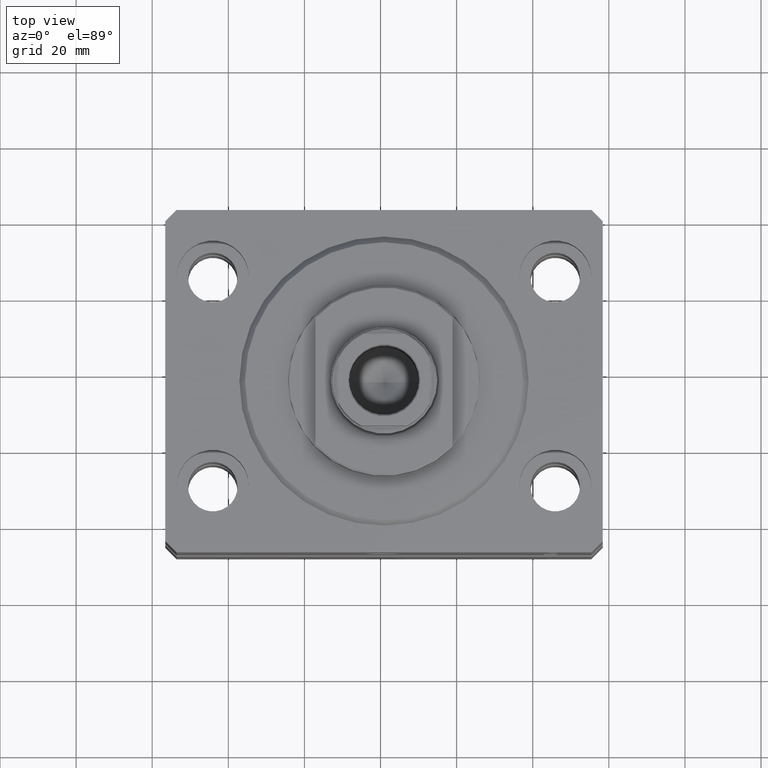
[diagram: clean part render]
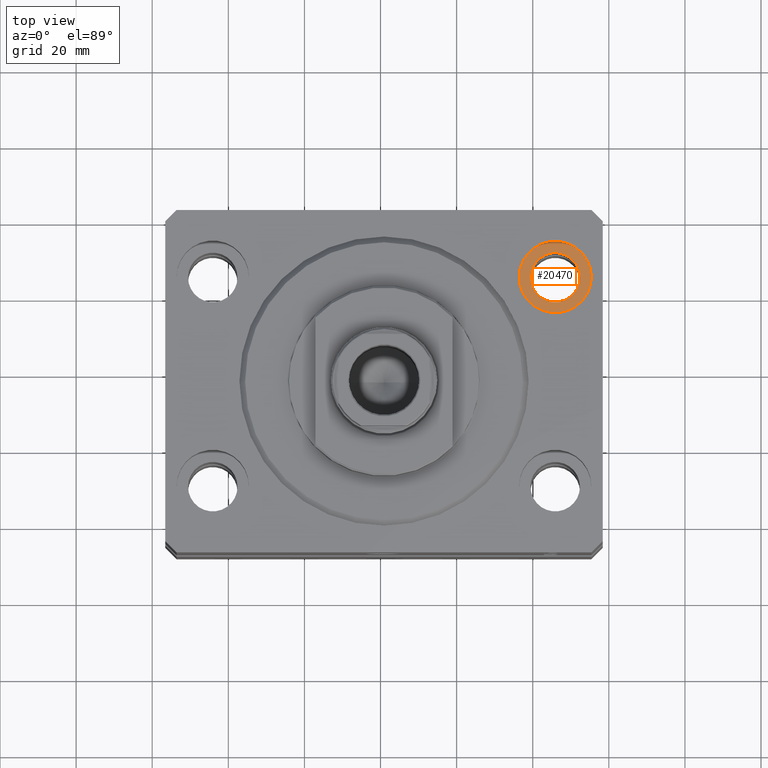
[diagram: same view with one face highlighted and labeled with its STEP entity id]
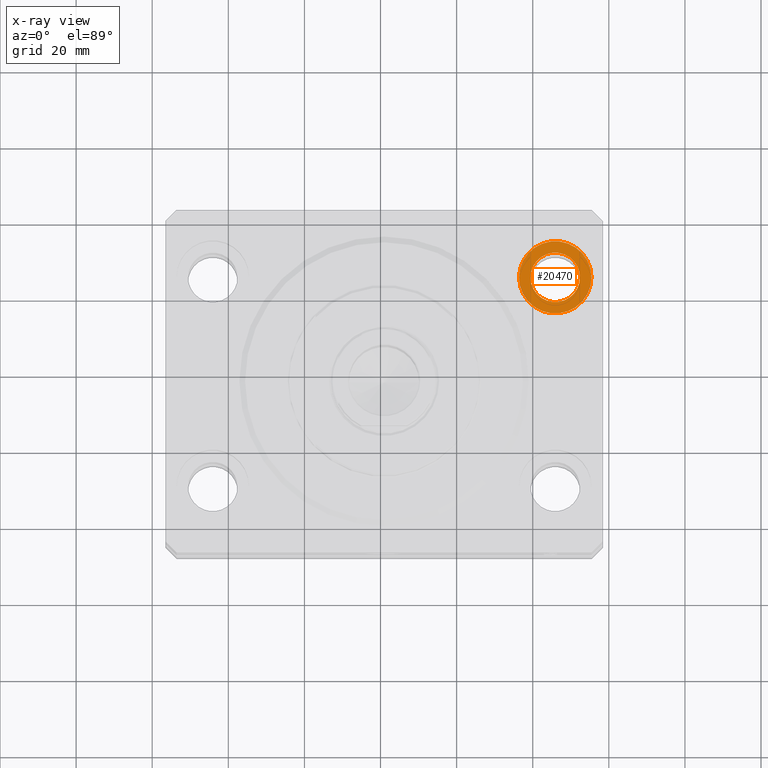
[diagram: x-ray of the same camera — body ghosted, the highlighted face saturated]
A machine part, top view. The second image highlights one B-rep face of the part: STEP entity #20470.
The next image is the same camera in x-ray: the body ghosted, the highlighted face saturated — about 0% of this face is hidden behind the body in this view.
In plain terms, the highlighted planar face has unit normal (0, 0, 1).
Its self-contained STEP definition (entity closure, byte-faithful):
#434 = EDGE_CURVE ( 'NONE', #6486, #27937, #5497, .T. ) ;
#619 = DIRECTION ( 'NONE',  ( 1.000000000000000000, 0.000000000000000000, 0.000000000000000000 ) ) ;
#2572 = DIRECTION ( 'NONE',  ( 1.000000000000000000, 0.000000000000000000, -0.000000000000000000 ) ) ;
#3683 = AXIS2_PLACEMENT_3D ( 'NONE', #44148, #15832, #36475 ) ;
#4068 = CARTESIAN_POINT ( 'NONE',  ( 45.00000000000000000, 27.50000000000001776, -13.00000000000000000 ) ) ;
#5497 = CIRCLE ( 'NONE', #13687, 9.500000000000001776 ) ;
#5590 = FACE_OUTER_BOUND ( 'NONE', #23919, .T. ) ;
#6486 = VERTEX_POINT ( 'NONE', #35922 ) ;
#6534 = EDGE_LOOP ( 'NONE', ( #41069, #38050 ) ) ;
#7588 = DIRECTION ( 'NONE',  ( 0.000000000000000000, 0.000000000000000000, 1.000000000000000000 ) ) ;
#9701 = CIRCLE ( 'NONE', #35639, 6.499999999999999112 ) ;
#10537 = AXIS2_PLACEMENT_3D ( 'NONE', #4068, #18267, #13640 ) ;
#11093 = CARTESIAN_POINT ( 'NONE',  ( 45.00000000000000000, 27.50000000000001776, -13.00000000000000000 ) ) ;
#11311 = ORIENTED_EDGE ( 'NONE', *, *, #434, .T. ) ;
#12627 = CARTESIAN_POINT ( 'NONE',  ( 38.50000000000000000, 27.50000000000001776, -13.00000000000000000 ) ) ;
#13407 = VERTEX_POINT ( 'NONE', #12627 ) ;
#13417 = CARTESIAN_POINT ( 'NONE',  ( 35.50000000000000000, 27.50000000000001776, -13.00000000000000000 ) ) ;
#13640 = DIRECTION ( 'NONE',  ( 1.000000000000000000, 0.000000000000000000, 0.000000000000000000 ) ) ;
#13687 = AXIS2_PLACEMENT_3D ( 'NONE', #39060, #36687, #22106 ) ;
#15832 = DIRECTION ( 'NONE',  ( 0.000000000000000000, 0.000000000000000000, 1.000000000000000000 ) ) ;
#16701 = CARTESIAN_POINT ( 'NONE',  ( 51.50000000000000000, 27.50000000000001776, -13.00000000000000000 ) ) ;
#17836 = AXIS2_PLACEMENT_3D ( 'NONE', #34159, #37403, #2572 ) ;
#18267 = DIRECTION ( 'NONE',  ( 0.000000000000000000, 0.000000000000000000, 1.000000000000000000 ) ) ;
#19421 = EDGE_CURVE ( 'NONE', #27937, #6486, #21511, .T. ) ;
#20470 = ADVANCED_FACE ( 'NONE', ( #34386, #5590 ), #37870, .T. ) ;
#20917 = CIRCLE ( 'NONE', #10537, 6.499999999999999112 ) ;
#21511 = CIRCLE ( 'NONE', #3683, 9.500000000000001776 ) ;
#22014 = EDGE_CURVE ( 'NONE', #13407, #41984, #9701, .T. ) ;
#22106 = DIRECTION ( 'NONE',  ( 1.000000000000000000, 0.000000000000000000, 0.000000000000000000 ) ) ;
#23919 = EDGE_LOOP ( 'NONE', ( #11311, #33468 ) ) ;
#25427 = EDGE_CURVE ( 'NONE', #41984, #13407, #20917, .T. ) ;
#27937 = VERTEX_POINT ( 'NONE', #13417 ) ;
#33468 = ORIENTED_EDGE ( 'NONE', *, *, #19421, .T. ) ;
#34159 = CARTESIAN_POINT ( 'NONE',  ( 45.00000000000000000, 27.50000000000001776, -13.00000000000000000 ) ) ;
#34386 = FACE_BOUND ( 'NONE', #6534, .T. ) ;
#35639 = AXIS2_PLACEMENT_3D ( 'NONE', #11093, #7588, #619 ) ;
#35922 = CARTESIAN_POINT ( 'NONE',  ( 54.50000000000000000, 27.50000000000001776, -13.00000000000000000 ) ) ;
#36475 = DIRECTION ( 'NONE',  ( 1.000000000000000000, 0.000000000000000000, 0.000000000000000000 ) ) ;
#36687 = DIRECTION ( 'NONE',  ( 0.000000000000000000, 0.000000000000000000, 1.000000000000000000 ) ) ;
#37403 = DIRECTION ( 'NONE',  ( 0.000000000000000000, 0.000000000000000000, 1.000000000000000000 ) ) ;
#37870 = PLANE ( 'NONE',  #17836 ) ;
#38050 = ORIENTED_EDGE ( 'NONE', *, *, #22014, .F. ) ;
#39060 = CARTESIAN_POINT ( 'NONE',  ( 45.00000000000000000, 27.50000000000001776, -13.00000000000000000 ) ) ;
#41069 = ORIENTED_EDGE ( 'NONE', *, *, #25427, .F. ) ;
#41984 = VERTEX_POINT ( 'NONE', #16701 ) ;
#44148 = CARTESIAN_POINT ( 'NONE',  ( 45.00000000000000000, 27.50000000000001776, -13.00000000000000000 ) ) ;